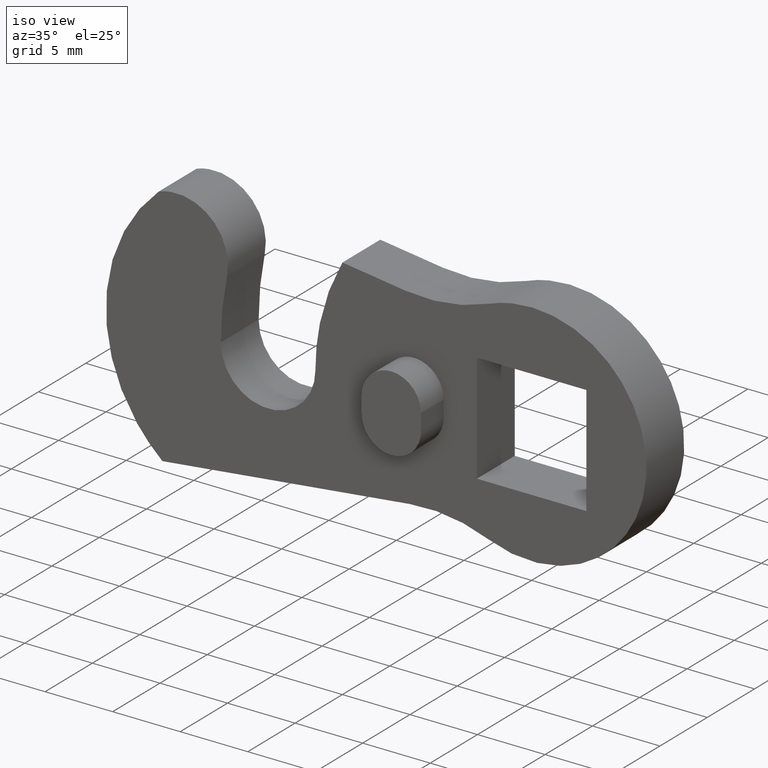
[diagram: clean part render]
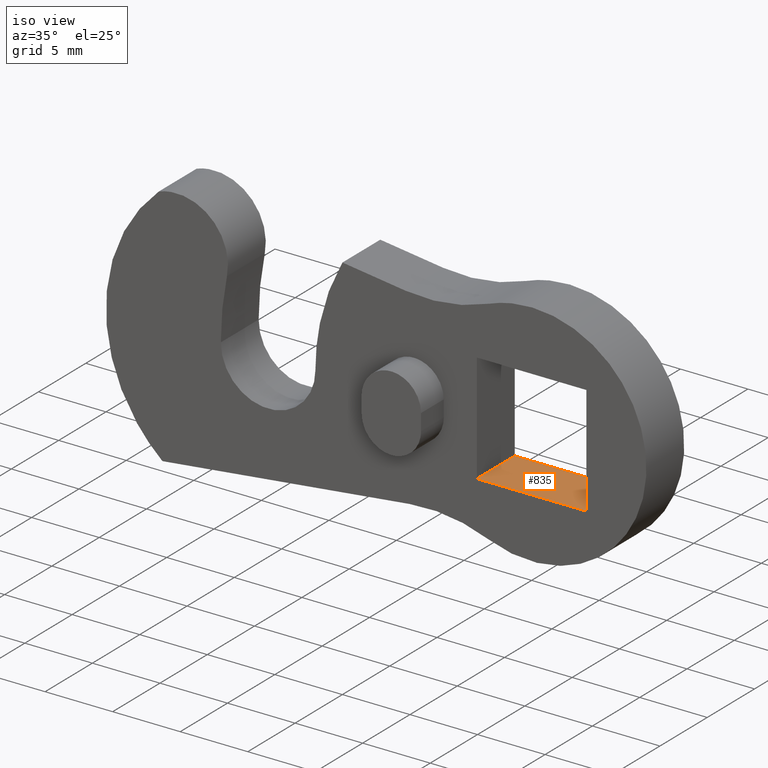
[diagram: same view with one face highlighted and labeled with its STEP entity id]
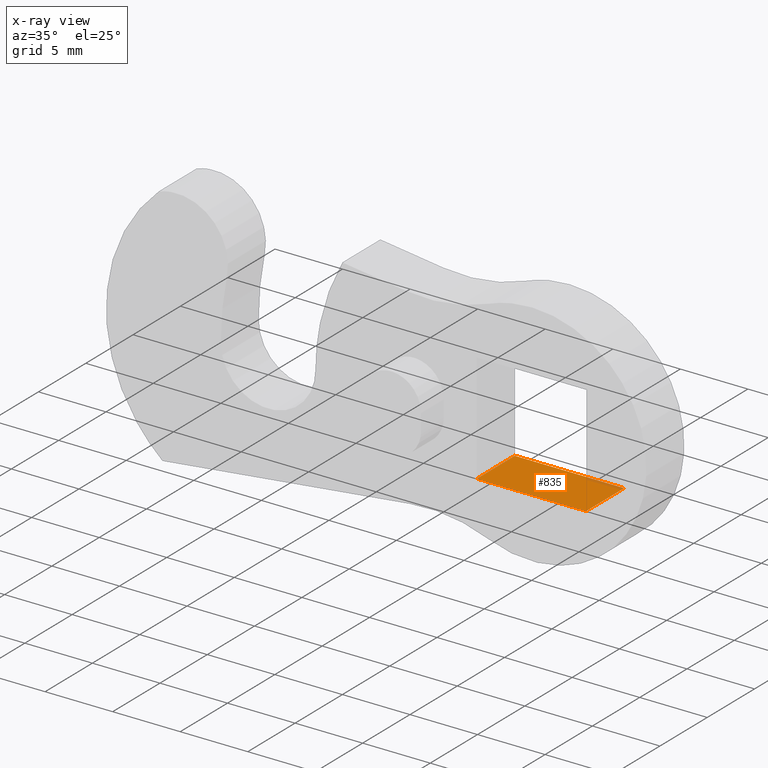
[diagram: x-ray of the same camera — body ghosted, the highlighted face saturated]
A machine part, iso view. The second image highlights one B-rep face of the part: STEP entity #835.
The next image is the same camera in x-ray: the body ghosted, the highlighted face saturated — about 3% of this face is hidden behind the body in this view.
In plain terms, the highlighted face is a freeform B-spline surface patch.
Its self-contained STEP definition (entity closure, byte-faithful):
#771=CARTESIAN_POINT('',(-4.050000192364665,4.000000189989585,-4.050000192364690));
#772=VERTEX_POINT('',#771);
#780=CARTESIAN_POINT('',(4.050000192364680,4.000000189989585,-4.050000192364680));
#781=VERTEX_POINT('',#780);
#782=CARTESIAN_POINT('',(4.050000192364680,4.000000189989585,-4.050000192364680));
#783=CARTESIAN_POINT('',(-4.050000192364665,4.000000189989585,-4.050000192364690));
#784=QUASI_UNIFORM_CURVE('',1,(#782,#783),.UNSPECIFIED.,.F.,.U.);
#785=EDGE_CURVE('',#781,#772,#784,.T.);
#808=CARTESIAN_POINT('',(-4.454595195882523,-0.199799987446393,-4.050000192364680));
#809=CARTESIAN_POINT('',(4.454595413141479,-0.199799987446393,-4.050000192364680));
#810=CARTESIAN_POINT('',(-4.454595195882523,4.199799998622035,-4.050000192364680));
#811=CARTESIAN_POINT('',(4.454595413141479,4.199799998622035,-4.050000192364680));
#812=B_SPLINE_SURFACE_WITH_KNOTS('',1,1,((#808,#810),(#809,#811)),.UNSPECIFIED.,.F.,.F.,.U.,(2,2),(2,2),(0.0,8.909190609024002),(0.0,4.399599986068428),.UNSPECIFIED.);
#813=CARTESIAN_POINT('',(4.050000192364680,0.0,-4.050000192364680));
#814=VERTEX_POINT('',#813);
#815=CARTESIAN_POINT('',(-4.050000192364665,0.0,-4.050000192364690));
#816=VERTEX_POINT('',#815);
#817=CARTESIAN_POINT('',(4.050000192364680,0.0,-4.050000192364680));
#818=CARTESIAN_POINT('',(-4.050000192364665,0.0,-4.050000192364690));
#819=QUASI_UNIFORM_CURVE('',1,(#817,#818),.UNSPECIFIED.,.F.,.U.);
#820=EDGE_CURVE('',#814,#816,#819,.T.);
#821=ORIENTED_EDGE('',*,*,#820,.F.);
#822=CARTESIAN_POINT('',(4.050000192364680,4.000000189989585,-4.050000192364680));
#823=CARTESIAN_POINT('',(4.050000192364680,0.0,-4.050000192364680));
#824=QUASI_UNIFORM_CURVE('',1,(#822,#823),.UNSPECIFIED.,.F.,.U.);
#825=EDGE_CURVE('',#781,#814,#824,.T.);
#826=ORIENTED_EDGE('',*,*,#825,.F.);
#827=ORIENTED_EDGE('',*,*,#785,.T.);
#828=CARTESIAN_POINT('',(-4.050000192364665,4.000000189989585,-4.050000192364690));
#829=CARTESIAN_POINT('',(-4.050000192364665,0.0,-4.050000192364690));
#830=QUASI_UNIFORM_CURVE('',1,(#828,#829),.UNSPECIFIED.,.F.,.U.);
#831=EDGE_CURVE('',#772,#816,#830,.T.);
#832=ORIENTED_EDGE('',*,*,#831,.T.);
#833=EDGE_LOOP('',(#821,#826,#827,#832));
#834=FACE_OUTER_BOUND('',#833,.T.);
#835=ADVANCED_FACE('',(#834),#812,.T.);